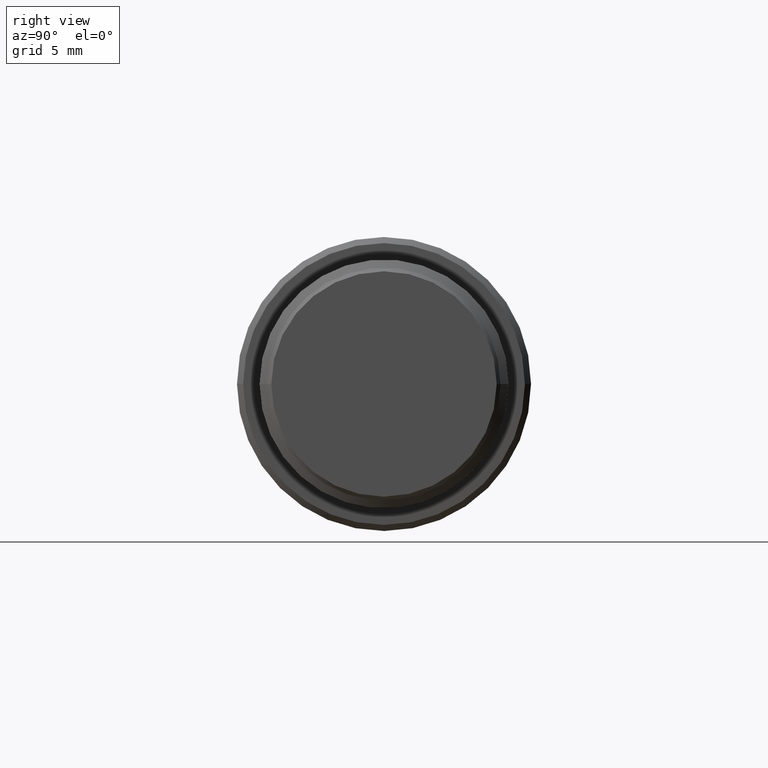
[diagram: clean part render]
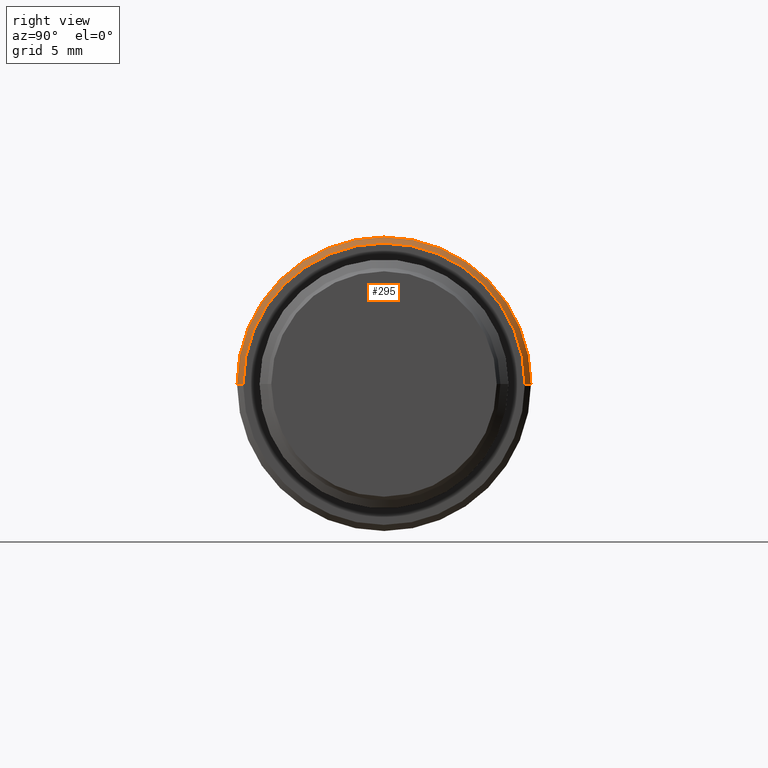
[diagram: same view with one face highlighted and labeled with its STEP entity id]
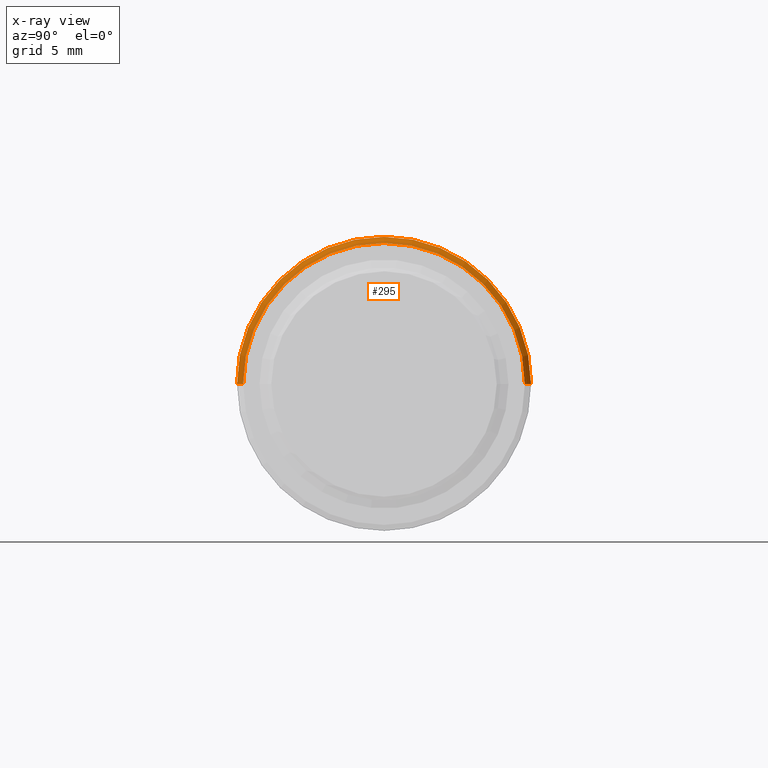
[diagram: x-ray of the same camera — body ghosted, the highlighted face saturated]
A machine part, right view. The second image highlights one B-rep face of the part: STEP entity #295.
The next image is the same camera in x-ray: the body ghosted, the highlighted face saturated — about 0% of this face is hidden behind the body in this view.
In plain terms, the highlighted conical surface has half-angle 45 deg.
Its self-contained STEP definition (entity closure, byte-faithful):
#148 = ORIENTED_EDGE ( 'NONE', *, *, #1099, .T. ) ;
#168 = ORIENTED_EDGE ( 'NONE', *, *, #1082, .F. ) ;
#177 = DIRECTION ( 'NONE',  ( 0.000000000000000000, 1.000000000000000000, 0.000000000000000000 ) ) ;
#186 = CARTESIAN_POINT ( 'NONE',  ( 44.50000000000000000, 0.000000000000000000, 0.000000000000000000 ) ) ;
#192 = CARTESIAN_POINT ( 'NONE',  ( 45.00000000000000000, 0.000000000000000000, 0.000000000000000000 ) ) ;
#248 = AXIS2_PLACEMENT_3D ( 'NONE', #715, #728, #250 ) ;
#250 = DIRECTION ( 'NONE',  ( 0.000000000000000000, 1.000000000000000000, 0.000000000000000000 ) ) ;
#278 = CARTESIAN_POINT ( 'NONE',  ( 44.50000000000000000, 12.00000000000000000, 0.000000000000000000 ) ) ;
#295 = ADVANCED_FACE ( 'NONE', ( #337 ), #851, .T. ) ;
#337 = FACE_OUTER_BOUND ( 'NONE', #477, .T. ) ;
#338 = CARTESIAN_POINT ( 'NONE',  ( 45.00000000000000000, -11.50000000000000000, -1.408343819019459923E-15 ) ) ;
#340 = VERTEX_POINT ( 'NONE', #1238 ) ;
#381 = DIRECTION ( 'NONE',  ( 0.000000000000000000, 1.000000000000000000, 0.000000000000000000 ) ) ;
#418 = LINE ( 'NONE', #1087, #682 ) ;
#471 = AXIS2_PLACEMENT_3D ( 'NONE', #186, #480, #177 ) ;
#473 = AXIS2_PLACEMENT_3D ( 'NONE', #192, #651, #381 ) ;
#477 = EDGE_LOOP ( 'NONE', ( #740, #713, #168, #148 ) ) ;
#480 = DIRECTION ( 'NONE',  ( 1.000000000000000000, 0.000000000000000000, 0.000000000000000000 ) ) ;
#492 = DIRECTION ( 'NONE',  ( -0.7071067811865480168, -0.7071067811865470176, -8.659560562354929160E-17 ) ) ;
#533 = VECTOR ( 'NONE', #1037, 1000.000000000000000 ) ;
#592 = EDGE_CURVE ( 'NONE', #934, #340, #835, .T. ) ;
#651 = DIRECTION ( 'NONE',  ( 1.000000000000000000, 0.000000000000000000, 0.000000000000000000 ) ) ;
#682 = VECTOR ( 'NONE', #492, 1000.000000000000000 ) ;
#713 = ORIENTED_EDGE ( 'NONE', *, *, #1188, .F. ) ;
#715 = CARTESIAN_POINT ( 'NONE',  ( 44.50000000000000000, 0.000000000000000000, 0.000000000000000000 ) ) ;
#728 = DIRECTION ( 'NONE',  ( -1.000000000000000000, 0.000000000000000000, 0.000000000000000000 ) ) ;
#740 = ORIENTED_EDGE ( 'NONE', *, *, #592, .T. ) ;
#835 = CIRCLE ( 'NONE', #471, 12.00000000000000000 ) ;
#851 = CONICAL_SURFACE ( 'NONE', #248, 12.00000000000000000, 0.7853981633974476129 ) ;
#925 = VERTEX_POINT ( 'NONE', #338 ) ;
#934 = VERTEX_POINT ( 'NONE', #1020 ) ;
#1020 = CARTESIAN_POINT ( 'NONE',  ( 44.50000000000000000, 12.00000000000000000, 0.000000000000000000 ) ) ;
#1037 = DIRECTION ( 'NONE',  ( -0.7071067811865480168, 0.7071067811865470176, 0.000000000000000000 ) ) ;
#1082 = EDGE_CURVE ( 'NONE', #1161, #925, #1192, .T. ) ;
#1087 = CARTESIAN_POINT ( 'NONE',  ( 44.50000000000000000, -12.00000000000000000, -1.469576158976819806E-15 ) ) ;
#1099 = EDGE_CURVE ( 'NONE', #1161, #934, #1159, .T. ) ;
#1159 = LINE ( 'NONE', #278, #533 ) ;
#1161 = VERTEX_POINT ( 'NONE', #1250 ) ;
#1188 = EDGE_CURVE ( 'NONE', #925, #340, #418, .T. ) ;
#1192 = CIRCLE ( 'NONE', #473, 11.50000000000000000 ) ;
#1238 = CARTESIAN_POINT ( 'NONE',  ( 44.50000000000000000, -12.00000000000000000, -1.469576158976819806E-15 ) ) ;
#1250 = CARTESIAN_POINT ( 'NONE',  ( 45.00000000000000000, 11.50000000000000000, 0.000000000000000000 ) ) ;